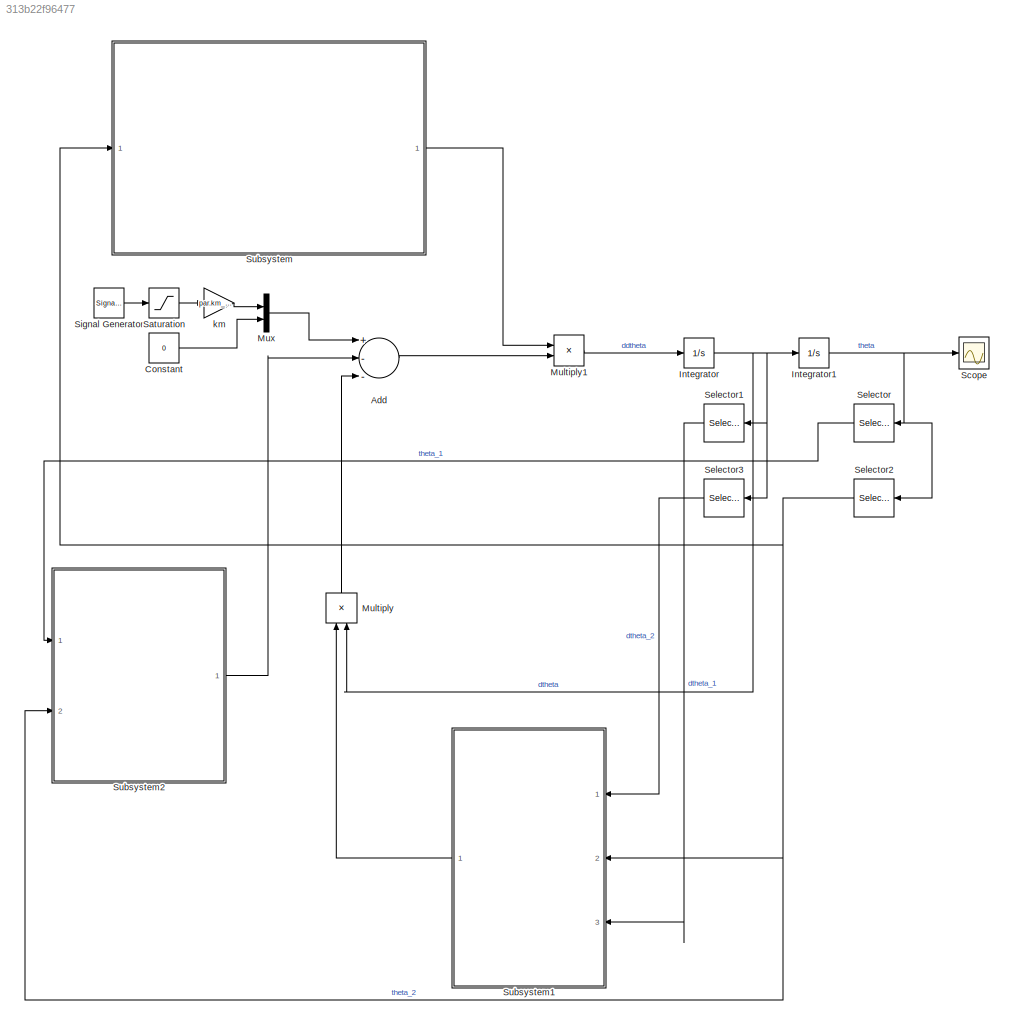
MODEL slx_313b22f96477
KIND model
CONFIG AbsTol = auto
CONFIG EnableMultiTasking = off
CONFIG FixedStep = auto
CONFIG InitFcn = dynrotpend
CONFIG MaxStep = auto
CONFIG MinStep = auto
CONFIG RelTol = 1e-3
CONFIG SampleTimeConstraint = Unconstrained
CONFIG Solver = VariableStepAuto
CONFIG SolverName = VariableStepAuto
CONFIG StartTime = 0.0
CONFIG StopTime = 30
BLOCK [Sum] Add
  InputSameDT = off
  Inputs = +--
  OutDataTypeStr = Inherit: Inherit via internal rule
  Ports = [3, 1]
  SaturateOnIntegerOverflow = off
BLOCK [Constant] Constant
  Value = 0
BLOCK [Integrator] Integrator
  InitialCondition = [0;0]
  Ports = [1, 1]
BLOCK [Integrator] Integrator1
  InitialCondition = [pi;0]
  Ports = [1, 1]
BLOCK [Product] Multiply
  InputSameDT = off
  Multiplication = Matrix(*)
  OutDataTypeStr = Inherit: Inherit via internal rule
  Ports = [2, 1]
  RndMeth = Floor
  SaturateOnIntegerOverflow = off
BLOCK [Product] Multiply1
  InputSameDT = off
  Multiplication = Matrix(*)
  OutDataTypeStr = Inherit: Inherit via internal rule
  Ports = [2, 1]
  RndMeth = Floor
  SaturateOnIntegerOverflow = off
BLOCK [Mux] Mux
  DisplayOption = bar
  Inputs = 2
  Ports = [2, 1]
BLOCK [Saturate] Saturation
  InputPortMap = u0
  LowerLimit = -1
  Ports = [1, 1]
  UpperLimit = 1
BLOCK [Scope] Scope
  Floating = off
  NumInputPorts = 1
  Ports = [1]
  ScopeSpecificationString = Simulink.scopes.TimeScopeBlockCfg('CurrentConfiguration', extmgr.ConfigurationSet(extmgr.Configuration('Core','General UI',true),extmgr.Configuration('Core','Source UI',true),extmgr.Configuration('Sources','WiredSimulink',true),extmgr.Configuration('Visuals','Time Domain',true,'SerializedDisplays',{struct('MinYLimReal','-0.70834','MaxYLimReal','4.02895','YLabelReal','','MinYLimMag','0.00000','MaxY...<+1368ch>
BLOCK [Selector] Selector
  IndexOptions = Index vector (dialog)
  Indices = [1]
  InputPortWidth = 2
  OutputSizes = 1
  Ports = [1, 1]
BLOCK [Selector] Selector1
  IndexOptions = Index vector (dialog)
  Indices = [1]
  InputPortWidth = 2
  OutputSizes = 1
  Ports = [1, 1]
BLOCK [Selector] Selector2
  IndexOptions = Index vector (dialog)
  Indices = [2]
  InputPortWidth = 2
  OutputSizes = 1
  Ports = [1, 1]
BLOCK [Selector] Selector3
  IndexOptions = Index vector (dialog)
  Indices = [2]
  InputPortWidth = 2
  OutputSizes = 1
  Ports = [1, 1]
BLOCK [SignalGenerator] Signal Generator
  Amplitude = 0.3
  Ports = [0, 1]
  WaveForm = square
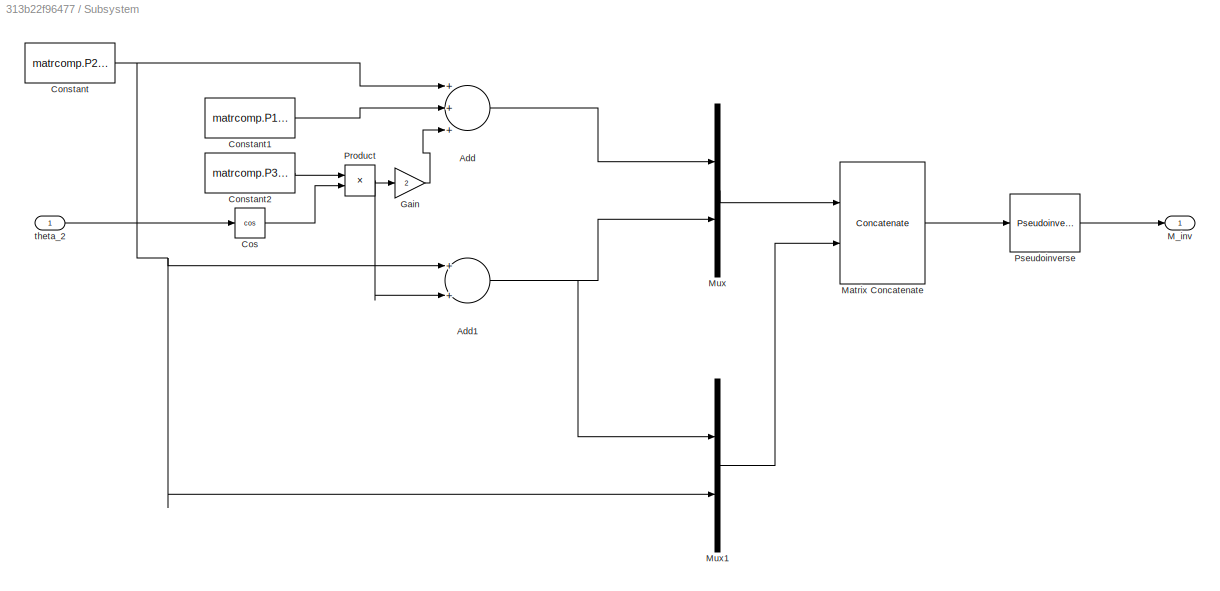
BLOCK [SubSystem] Subsystem
  Ports = [1, 1]
  RequestExecContextInheritance = off
BLOCK [Sum] Subsystem/Add
  InputSameDT = off
  Inputs = +++
  OutDataTypeStr = Inherit: Inherit via internal rule
  Ports = [3, 1]
  SaturateOnIntegerOverflow = off
BLOCK [Sum] Subsystem/Add1
  InputSameDT = off
  OutDataTypeStr = Inherit: Inherit via internal rule
  Ports = [2, 1]
  SaturateOnIntegerOverflow = off
BLOCK [Constant] Subsystem/Constant
  Value = matrcomp.P2_est
BLOCK [Constant] Subsystem/Constant1
  Value = matrcomp.P1_est
BLOCK [Constant] Subsystem/Constant2
  Value = matrcomp.P3_est
BLOCK [Trigonometry] Subsystem/Cos
  Operator = cos
  Ports = [1, 1]
BLOCK [Gain] Subsystem/Gain
  Gain = 2
  OutDataTypeStr = Inherit: Inherit via internal rule
  ParamDataTypeStr = Inherit: Inherit via internal rule
  SaturateOnIntegerOverflow = off
BLOCK [Outport] Subsystem/M_inv
  IconDisplay = Port number
BLOCK [Concatenate] Subsystem/Matrix Concatenate
  ConcatenateDimension = 2
  Mode = Multidimensional array
  Ports = [2, 1]
BLOCK [Mux] Subsystem/Mux
  DisplayOption = bar
  Inputs = 2
  Ports = [2, 1]
BLOCK [Mux] Subsystem/Mux1
  DisplayOption = bar
  Inputs = 2
  Ports = [2, 1]
BLOCK [Product] Subsystem/Product
  InputSameDT = off
  OutDataTypeStr = Inherit: Inherit via internal rule
  Ports = [2, 1]
  RndMeth = Floor
  SaturateOnIntegerOverflow = off
BLOCK [Reference] Subsystem/Pseudoinverse  REF=dspinverses/Pseudoinverse
  Ports = [1, 1]
  SourceBlock = dspinverses/Pseudoinverse
  SourceProductBaseCode = DS
  SourceProductName = DSP System Toolbox
  SourceType = Pseudoinverse
BLOCK [Inport] Subsystem/theta_2 
  IconDisplay = Port number
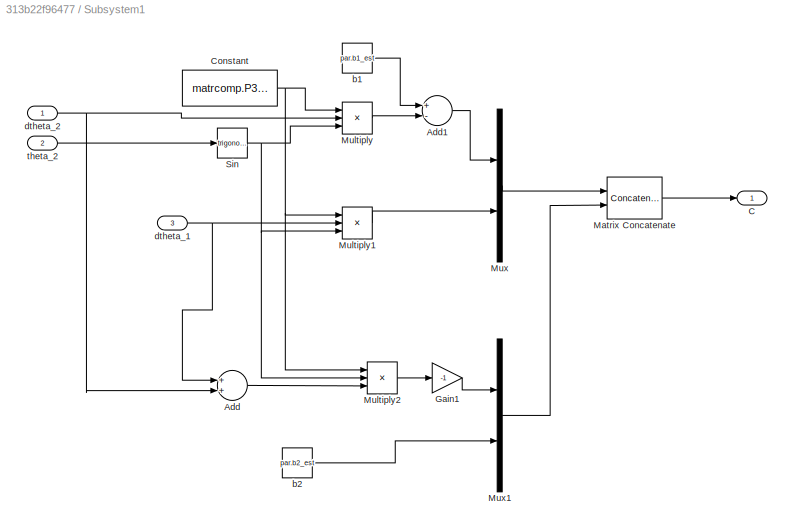
BLOCK [SubSystem] Subsystem1
  Ports = [3, 1]
  RequestExecContextInheritance = off
BLOCK [Sum] Subsystem1/Add
  InputSameDT = off
  OutDataTypeStr = Inherit: Inherit via internal rule
  Ports = [2, 1]
  SaturateOnIntegerOverflow = off
BLOCK [Sum] Subsystem1/Add1
  InputSameDT = off
  Inputs = +-
  OutDataTypeStr = Inherit: Inherit via internal rule
  Ports = [2, 1]
  SaturateOnIntegerOverflow = off
BLOCK [Outport] Subsystem1/C
  IconDisplay = Port number
BLOCK [Constant] Subsystem1/Constant
  Value = matrcomp.P3_est
BLOCK [Gain] Subsystem1/Gain1
  Gain = -1
  OutDataTypeStr = Inherit: Inherit via internal rule
  ParamDataTypeStr = Inherit: Inherit via internal rule
  SaturateOnIntegerOverflow = off
BLOCK [Concatenate] Subsystem1/Matrix Concatenate
  ConcatenateDimension = 2
  Mode = Multidimensional array
  Ports = [2, 1]
BLOCK [Product] Subsystem1/Multiply
  InputSameDT = off
  Inputs = 3
  OutDataTypeStr = Inherit: Inherit via internal rule
  Ports = [3, 1]
  RndMeth = Floor
  SaturateOnIntegerOverflow = off
BLOCK [Product] Subsystem1/Multiply1
  InputSameDT = off
  Inputs = 3
  OutDataTypeStr = Inherit: Inherit via internal rule
  Ports = [3, 1]
  RndMeth = Floor
  SaturateOnIntegerOverflow = off
BLOCK [Product] Subsystem1/Multiply2
  InputSameDT = off
  Inputs = 3
  OutDataTypeStr = Inherit: Inherit via internal rule
  Ports = [3, 1]
  RndMeth = Floor
  SaturateOnIntegerOverflow = off
BLOCK [Mux] Subsystem1/Mux
  DisplayOption = bar
  Inputs = 2
  Ports = [2, 1]
BLOCK [Mux] Subsystem1/Mux1
  DisplayOption = bar
  Inputs = 2
  Ports = [2, 1]
BLOCK [Trigonometry] Subsystem1/Sin
  Ports = [1, 1]
BLOCK [Constant] Subsystem1/b1
  Value = par.b1_est
BLOCK [Constant] Subsystem1/b2
  Value = par.b2_est
BLOCK [Inport] Subsystem1/dtheta_1
  IconDisplay = Port number
  Port = 3
BLOCK [Inport] Subsystem1/dtheta_2
  IconDisplay = Port number
BLOCK [Inport] Subsystem1/theta_2
  IconDisplay = Port number
  Port = 2
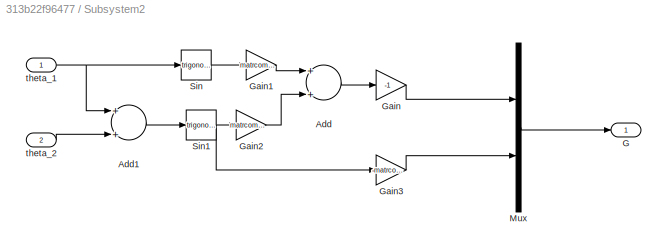
BLOCK [SubSystem] Subsystem2
  Ports = [2, 1]
  RequestExecContextInheritance = off
BLOCK [Sum] Subsystem2/Add
  InputSameDT = off
  OutDataTypeStr = Inherit: Inherit via internal rule
  Ports = [2, 1]
  SaturateOnIntegerOverflow = off
BLOCK [Sum] Subsystem2/Add1
  InputSameDT = off
  OutDataTypeStr = Inherit: Inherit via internal rule
  Ports = [2, 1]
  SaturateOnIntegerOverflow = off
BLOCK [Outport] Subsystem2/G
  IconDisplay = Port number
BLOCK [Gain] Subsystem2/Gain
  Gain = -1
  OutDataTypeStr = Inherit: Inherit via internal rule
  ParamDataTypeStr = Inherit: Inherit via internal rule
  SaturateOnIntegerOverflow = off
BLOCK [Gain] Subsystem2/Gain1
  Gain = matrcomp.g1_est
  OutDataTypeStr = Inherit: Inherit via internal rule
  ParamDataTypeStr = Inherit: Inherit via internal rule
  SaturateOnIntegerOverflow = off
BLOCK [Gain] Subsystem2/Gain2
  Gain = matrcomp.g2_est
  OutDataTypeStr = Inherit: Inherit via internal rule
  ParamDataTypeStr = Inherit: Inherit via internal rule
  SaturateOnIntegerOverflow = off
BLOCK [Gain] Subsystem2/Gain3
  Gain = -matrcomp.g2_est
  OutDataTypeStr = Inherit: Inherit via internal rule
  ParamDataTypeStr = Inherit: Inherit via internal rule
  SaturateOnIntegerOverflow = off
BLOCK [Mux] Subsystem2/Mux
  DisplayOption = bar
  Inputs = 2
  Ports = [2, 1]
BLOCK [Trigonometry] Subsystem2/Sin
  Ports = [1, 1]
BLOCK [Trigonometry] Subsystem2/Sin1
  Ports = [1, 1]
BLOCK [Inport] Subsystem2/theta_1
  IconDisplay = Port number
BLOCK [Inport] Subsystem2/theta_2 
  IconDisplay = Port number
  Port = 2
BLOCK [Gain] km
  Gain = par.km_est
  OutDataTypeStr = Inherit: Inherit via internal rule
  ParamDataTypeStr = Inherit: Inherit via internal rule
  SaturateOnIntegerOverflow = off
LINE Add:1 -> Multiply1:2
LINE Constant:1 -> Mux:2
NET Integrator1:1 -> Scope:1, Selector2:1, Selector:1
NET Integrator:1 -> Integrator1:1, Multiply:2, Selector1:1, Selector3:1
LINE Multiply1:1 -> Integrator:1
LINE Multiply:1 -> Add:3
LINE Mux:1 -> Add:1
LINE Saturation:1 -> km:1
LINE Selector1:1 -> Subsystem1:3
NET Selector2:1 -> Subsystem1:2, Subsystem2:2, Subsystem:1
LINE Selector3:1 -> Subsystem1:1
LINE Selector:1 -> Subsystem2:1
LINE Signal Generator:1 -> Saturation:1
NET Subsystem/Add1:1 -> Subsystem/Mux1:1, Subsystem/Mux:2
LINE Subsystem/Add:1 -> Subsystem/Mux:1
LINE Subsystem/Constant1:1 -> Subsystem/Add:2
LINE Subsystem/Constant2:1 -> Subsystem/Product:1
NET Subsystem/Constant:1 -> Subsystem/Add1:1, Subsystem/Add:1, Subsystem/Mux1:2
LINE Subsystem/Cos:1 -> Subsystem/Product:2
LINE Subsystem/Gain:1 -> Subsystem/Add:3
LINE Subsystem/Matrix Concatenate:1 -> Subsystem/Pseudoinverse:1
LINE Subsystem/Mux1:1 -> Subsystem/Matrix Concatenate:2
LINE Subsystem/Mux:1 -> Subsystem/Matrix Concatenate:1
NET Subsystem/Product:1 -> Subsystem/Add1:2, Subsystem/Gain:1
LINE Subsystem/Pseudoinverse:1 -> Subsystem/M_inv:1
LINE Subsystem/theta_2 :1 -> Subsystem/Cos:1
LINE Subsystem1/Add1:1 -> Subsystem1/Mux:1
LINE Subsystem1/Add:1 -> Subsystem1/Multiply2:3
NET Subsystem1/Constant:1 -> Subsystem1/Multiply1:1, Subsystem1/Multiply2:1, Subsystem1/Multiply:1
LINE Subsystem1/Gain1:1 -> Subsystem1/Mux1:1
LINE Subsystem1/Matrix Concatenate:1 -> Subsystem1/C:1
LINE Subsystem1/Multiply1:1 -> Subsystem1/Mux:2
LINE Subsystem1/Multiply2:1 -> Subsystem1/Gain1:1
LINE Subsystem1/Multiply:1 -> Subsystem1/Add1:2
LINE Subsystem1/Mux1:1 -> Subsystem1/Matrix Concatenate:2
LINE Subsystem1/Mux:1 -> Subsystem1/Matrix Concatenate:1
NET Subsystem1/Sin:1 -> Subsystem1/Multiply1:3, Subsystem1/Multiply2:2, Subsystem1/Multiply:3
LINE Subsystem1/b1:1 -> Subsystem1/Add1:1
LINE Subsystem1/b2:1 -> Subsystem1/Mux1:2
NET Subsystem1/dtheta_1:1 -> Subsystem1/Add:1, Subsystem1/Multiply1:2
NET Subsystem1/dtheta_2:1 -> Subsystem1/Add:2, Subsystem1/Multiply:2
LINE Subsystem1/theta_2:1 -> Subsystem1/Sin:1
LINE Subsystem1:1 -> Multiply:1
LINE Subsystem2/Add1:1 -> Subsystem2/Sin1:1
LINE Subsystem2/Add:1 -> Subsystem2/Gain:1
LINE Subsystem2/Gain1:1 -> Subsystem2/Add:1
LINE Subsystem2/Gain2:1 -> Subsystem2/Add:2
LINE Subsystem2/Gain3:1 -> Subsystem2/Mux:2
LINE Subsystem2/Gain:1 -> Subsystem2/Mux:1
LINE Subsystem2/Mux:1 -> Subsystem2/G:1
NET Subsystem2/Sin1:1 -> Subsystem2/Gain2:1, Subsystem2/Gain3:1
LINE Subsystem2/Sin:1 -> Subsystem2/Gain1:1
NET Subsystem2/theta_1:1 -> Subsystem2/Add1:1, Subsystem2/Sin:1
LINE Subsystem2/theta_2 :1 -> Subsystem2/Add1:2
LINE Subsystem2:1 -> Add:2
LINE Subsystem:1 -> Multiply1:1
LINE km:1 -> Mux:1
note: NET lines group one-source signal fan-out (src -> all destinations, sorted); 1:1 wires keep LINE
